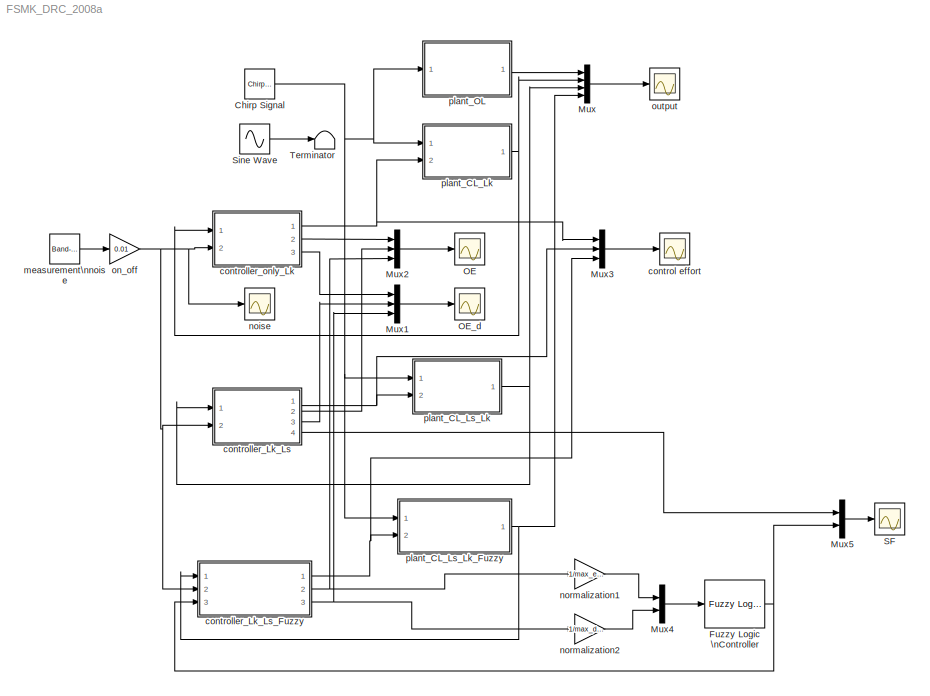
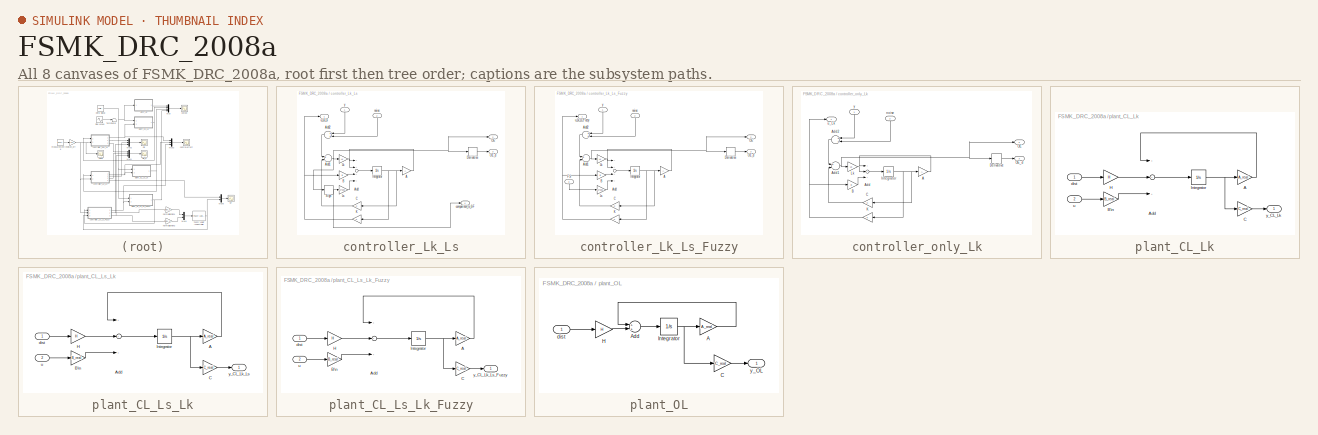
[diagram: thumbnail index - all 8 canvases of the model, root first then tree order]
MODEL FSMK_DRC_2008a
KIND model
BLOCK [Reference] Chirp Signal  REF=simulink/Sources/Chirp Signal
  Ports = [0, 1]
  SourceBlock = simulink/Sources/Chirp Signal
  SourceType = chirp
  T = 20
  VectorParams1D = on
  f1 = 0.1
  f2 = 100
BLOCK [Reference] Fuzzy Logic \nController  REF=fuzblock/Fuzzy Logic \nController  (lib defined in mdl_858b3b3e7478)
  Ports = [1, 1]
  SourceBlock = fuzblock/Fuzzy Logic \nController
  SourceType = FIS
  fis = 'FSMO.fis'
BLOCK [Mux] Mux
  DisplayOption = bar
  Ports = [4, 1]
BLOCK [Mux] Mux1
  DisplayOption = bar
  Inputs = 3
  Ports = [3, 1]
BLOCK [Mux] Mux2
  DisplayOption = bar
  Inputs = 3
  Ports = [3, 1]
BLOCK [Mux] Mux3
  DisplayOption = bar
  Inputs = 3
  Ports = [3, 1]
BLOCK [Mux] Mux4
  DisplayOption = bar
  Inputs = 2
  Ports = [2, 1]
BLOCK [Mux] Mux5
  DisplayOption = bar
  Inputs = 2
  Ports = [2, 1]
BLOCK [Scope] OE
  Floating = off
  LimitDataPoints = off
  NumInputPorts = 1
  Ports = [1]
  SaveName = ScopeData1
  YMax = 0.01
  YMin = -0.01
BLOCK [Scope] OE_d
  Floating = off
  LimitDataPoints = off
  NumInputPorts = 1
  Ports = [1]
  SaveName = ScopeData3
BLOCK [Scope] SF
  Floating = off
  LimitDataPoints = off
  NumInputPorts = 1
  Ports = [1]
  SaveName = ScopeData5
  YMax = 1
  YMin = -1
BLOCK [Sin] Sine Wave
  Frequency = 13.8*2*pi
  Ports = [0, 1]
  SampleTime = 0
BLOCK [Terminator] Terminator
BLOCK [Scope] control effort
  Floating = off
  LimitDataPoints = off
  NumInputPorts = 1
  Ports = [1]
  SaveName = ScopeData4
  YMax = 0.15
  YMin = -0.15
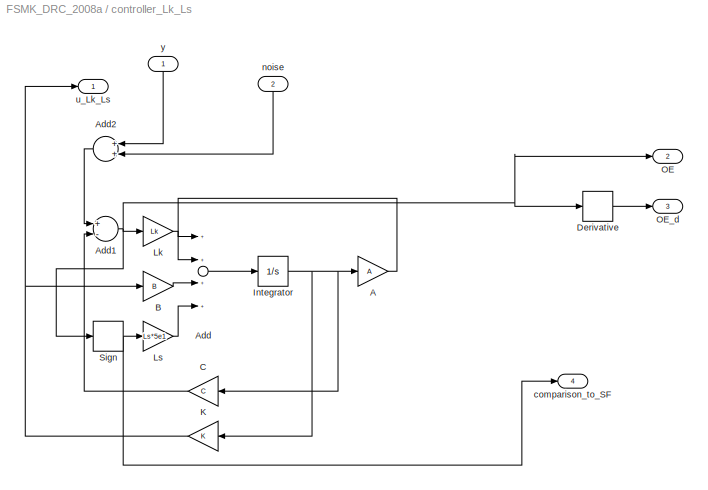
BLOCK [SubSystem] controller_Lk_Ls
  FunctionWithSeparateData = off
  MaskHideContents = off
  MinAlgLoopOccurrences = off
  Opaque = off
  Ports = [2, 4]
  PropExecContextOutsideSubsystem = off
  RTWSystemCode = Auto
BLOCK [Gain] controller_Lk_Ls/A
  Gain = A
  Multiplication = Matrix(K*u)
  OutDataTypeMode = Inherit via internal rule
  OutDataTypeStr = Inherit: Inherit via internal rule
  ParamDataTypeStr = Inherit: Inherit via internal rule
  ParameterDataTypeMode = Inherit via internal rule
  SaturateOnIntegerOverflow = off
BLOCK [Sum] controller_Lk_Ls/Add
  InputSameDT = off
  Inputs = ++++
  OutDataTypeMode = Inherit via internal rule
  OutDataTypeStr = Inherit: Inherit via internal rule
  Ports = [4, 1]
  SaturateOnIntegerOverflow = off
BLOCK [Sum] controller_Lk_Ls/Add1
  InputSameDT = off
  Inputs = +-
  OutDataTypeMode = Inherit via internal rule
  OutDataTypeStr = Inherit: Inherit via internal rule
  Ports = [2, 1]
  SaturateOnIntegerOverflow = off
BLOCK [Sum] controller_Lk_Ls/Add2
  InputSameDT = off
  OutDataTypeMode = Inherit via internal rule
  OutDataTypeStr = Inherit: Inherit via internal rule
  Ports = [2, 1]
  SaturateOnIntegerOverflow = off
BLOCK [Gain] controller_Lk_Ls/B
  Gain = B
  Multiplication = Matrix(K*u)
  OutDataTypeMode = Inherit via internal rule
  OutDataTypeStr = Inherit: Inherit via internal rule
  ParamDataTypeStr = Inherit: Inherit via internal rule
  ParameterDataTypeMode = Inherit via internal rule
  SaturateOnIntegerOverflow = off
BLOCK [Gain] controller_Lk_Ls/C
  Gain = C
  Multiplication = Matrix(K*u)
  OutDataTypeMode = Inherit via internal rule
  OutDataTypeStr = Inherit: Inherit via internal rule
  ParamDataTypeStr = Inherit: Inherit via internal rule
  ParameterDataTypeMode = Inherit via internal rule
  SaturateOnIntegerOverflow = off
BLOCK [Derivative] controller_Lk_Ls/Derivative
BLOCK [Integrator] controller_Lk_Ls/Integrator
  Ports = [1, 1]
BLOCK [Gain] controller_Lk_Ls/K
  Gain = K
  Multiplication = Matrix(K*u)
  OutDataTypeMode = Inherit via internal rule
  OutDataTypeStr = Inherit: Inherit via internal rule
  ParamDataTypeStr = Inherit: Inherit via internal rule
  ParameterDataTypeMode = Inherit via internal rule
  SaturateOnIntegerOverflow = off
BLOCK [Gain] controller_Lk_Ls/Lk
  Gain = Lk
  Multiplication = Matrix(K*u)
  OutDataTypeMode = Inherit via internal rule
  OutDataTypeStr = Inherit: Inherit via internal rule
  ParamDataTypeStr = Inherit: Inherit via internal rule
  ParameterDataTypeMode = Inherit via internal rule
  SaturateOnIntegerOverflow = off
BLOCK [Gain] controller_Lk_Ls/Ls
  Gain = Ls*5e1
  Multiplication = Matrix(K*u)
  OutDataTypeMode = Inherit via internal rule
  OutDataTypeStr = Inherit: Inherit via internal rule
  ParamDataTypeStr = Inherit: Inherit via internal rule
  ParameterDataTypeMode = Inherit via internal rule
  SaturateOnIntegerOverflow = off
BLOCK [Outport] controller_Lk_Ls/OE
  IconDisplay = Port number
  Port = 2
BLOCK [Outport] controller_Lk_Ls/OE_d
  IconDisplay = Port number
  Port = 3
BLOCK [Signum] controller_Lk_Ls/Sign
BLOCK [Outport] controller_Lk_Ls/comparison_to_SF
  IconDisplay = Port number
  Port = 4
BLOCK [Inport] controller_Lk_Ls/noise
  IconDisplay = Port number
  Port = 2
BLOCK [Outport] controller_Lk_Ls/u_Lk_Ls
  IconDisplay = Port number
BLOCK [Inport] controller_Lk_Ls/y
  IconDisplay = Port number
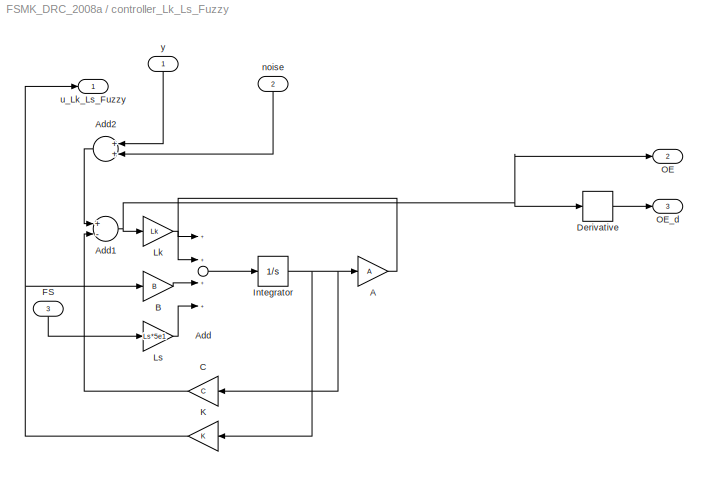
BLOCK [SubSystem] controller_Lk_Ls_Fuzzy
  FunctionWithSeparateData = off
  MaskHideContents = off
  MinAlgLoopOccurrences = off
  Opaque = off
  Ports = [3, 3]
  PropExecContextOutsideSubsystem = off
  RTWSystemCode = Auto
BLOCK [Gain] controller_Lk_Ls_Fuzzy/A
  Gain = A
  Multiplication = Matrix(K*u)
  OutDataTypeMode = Inherit via internal rule
  OutDataTypeStr = Inherit: Inherit via internal rule
  ParamDataTypeStr = Inherit: Inherit via internal rule
  ParameterDataTypeMode = Inherit via internal rule
  SaturateOnIntegerOverflow = off
BLOCK [Sum] controller_Lk_Ls_Fuzzy/Add
  InputSameDT = off
  Inputs = ++++
  OutDataTypeMode = Inherit via internal rule
  OutDataTypeStr = Inherit: Inherit via internal rule
  Ports = [4, 1]
  SaturateOnIntegerOverflow = off
BLOCK [Sum] controller_Lk_Ls_Fuzzy/Add1
  InputSameDT = off
  Inputs = +-
  OutDataTypeMode = Inherit via internal rule
  OutDataTypeStr = Inherit: Inherit via internal rule
  Ports = [2, 1]
  SaturateOnIntegerOverflow = off
BLOCK [Sum] controller_Lk_Ls_Fuzzy/Add2
  InputSameDT = off
  OutDataTypeMode = Inherit via internal rule
  OutDataTypeStr = Inherit: Inherit via internal rule
  Ports = [2, 1]
  SaturateOnIntegerOverflow = off
BLOCK [Gain] controller_Lk_Ls_Fuzzy/B
  Gain = B
  Multiplication = Matrix(K*u)
  OutDataTypeMode = Inherit via internal rule
  OutDataTypeStr = Inherit: Inherit via internal rule
  ParamDataTypeStr = Inherit: Inherit via internal rule
  ParameterDataTypeMode = Inherit via internal rule
  SaturateOnIntegerOverflow = off
BLOCK [Gain] controller_Lk_Ls_Fuzzy/C
  Gain = C
  Multiplication = Matrix(K*u)
  OutDataTypeMode = Inherit via internal rule
  OutDataTypeStr = Inherit: Inherit via internal rule
  ParamDataTypeStr = Inherit: Inherit via internal rule
  ParameterDataTypeMode = Inherit via internal rule
  SaturateOnIntegerOverflow = off
BLOCK [Derivative] controller_Lk_Ls_Fuzzy/Derivative
BLOCK [Inport] controller_Lk_Ls_Fuzzy/FS
  IconDisplay = Port number
  Port = 3
BLOCK [Integrator] controller_Lk_Ls_Fuzzy/Integrator
  Ports = [1, 1]
BLOCK [Gain] controller_Lk_Ls_Fuzzy/K
  Gain = K
  Multiplication = Matrix(K*u)
  OutDataTypeMode = Inherit via internal rule
  OutDataTypeStr = Inherit: Inherit via internal rule
  ParamDataTypeStr = Inherit: Inherit via internal rule
  ParameterDataTypeMode = Inherit via internal rule
  SaturateOnIntegerOverflow = off
BLOCK [Gain] controller_Lk_Ls_Fuzzy/Lk
  Gain = Lk
  Multiplication = Matrix(K*u)
  OutDataTypeMode = Inherit via internal rule
  OutDataTypeStr = Inherit: Inherit via internal rule
  ParamDataTypeStr = Inherit: Inherit via internal rule
  ParameterDataTypeMode = Inherit via internal rule
  SaturateOnIntegerOverflow = off
BLOCK [Gain] controller_Lk_Ls_Fuzzy/Ls
  Gain = Ls*5e1
  Multiplication = Matrix(K*u)
  OutDataTypeMode = Inherit via internal rule
  OutDataTypeStr = Inherit: Inherit via internal rule
  ParamDataTypeStr = Inherit: Inherit via internal rule
  ParameterDataTypeMode = Inherit via internal rule
  SaturateOnIntegerOverflow = off
BLOCK [Outport] controller_Lk_Ls_Fuzzy/OE
  IconDisplay = Port number
  Port = 2
BLOCK [Outport] controller_Lk_Ls_Fuzzy/OE_d
  IconDisplay = Port number
  Port = 3
BLOCK [Inport] controller_Lk_Ls_Fuzzy/noise
  IconDisplay = Port number
  Port = 2
BLOCK [Outport] controller_Lk_Ls_Fuzzy/u_Lk_Ls_Fuzzy
  IconDisplay = Port number
BLOCK [Inport] controller_Lk_Ls_Fuzzy/y
  IconDisplay = Port number
BLOCK [SubSystem] controller_only_Lk
  FunctionWithSeparateData = off
  MaskHideContents = off
  MinAlgLoopOccurrences = off
  Opaque = off
  Ports = [2, 3]
  PropExecContextOutsideSubsystem = off
  RTWSystemCode = Auto
BLOCK [Gain] controller_only_Lk/A
  Gain = A
  Multiplication = Matrix(K*u)
  OutDataTypeMode = Inherit via internal rule
  OutDataTypeStr = Inherit: Inherit via internal rule
  ParamDataTypeStr = Inherit: Inherit via internal rule
  ParameterDataTypeMode = Inherit via internal rule
  SaturateOnIntegerOverflow = off
BLOCK [Sum] controller_only_Lk/Add
  InputSameDT = off
  Inputs = +++
  OutDataTypeMode = Inherit via internal rule
  OutDataTypeStr = Inherit: Inherit via internal rule
  Ports = [3, 1]
  SaturateOnIntegerOverflow = off
BLOCK [Sum] controller_only_Lk/Add1
  InputSameDT = off
  Inputs = +-
  OutDataTypeMode = Inherit via internal rule
  OutDataTypeStr = Inherit: Inherit via internal rule
  Ports = [2, 1]
  SaturateOnIntegerOverflow = off
BLOCK [Sum] controller_only_Lk/Add2
  InputSameDT = off
  OutDataTypeMode = Inherit via internal rule
  OutDataTypeStr = Inherit: Inherit via internal rule
  Ports = [2, 1]
  SaturateOnIntegerOverflow = off
BLOCK [Gain] controller_only_Lk/B
  Gain = B
  Multiplication = Matrix(K*u)
  OutDataTypeMode = Inherit via internal rule
  OutDataTypeStr = Inherit: Inherit via internal rule
  ParamDataTypeStr = Inherit: Inherit via internal rule
  ParameterDataTypeMode = Inherit via internal rule
  SaturateOnIntegerOverflow = off
BLOCK [Gain] controller_only_Lk/C
  Gain = C
  Multiplication = Matrix(K*u)
  OutDataTypeMode = Inherit via internal rule
  OutDataTypeStr = Inherit: Inherit via internal rule
  ParamDataTypeStr = Inherit: Inherit via internal rule
  ParameterDataTypeMode = Inherit via internal rule
  SaturateOnIntegerOverflow = off
BLOCK [Derivative] controller_only_Lk/Derivative
BLOCK [Integrator] controller_only_Lk/Integrator
  Ports = [1, 1]
BLOCK [Gain] controller_only_Lk/K
  Gain = K
  Multiplication = Matrix(K*u)
  OutDataTypeMode = Inherit via internal rule
  OutDataTypeStr = Inherit: Inherit via internal rule
  ParamDataTypeStr = Inherit: Inherit via internal rule
  ParameterDataTypeMode = Inherit via internal rule
  SaturateOnIntegerOverflow = off
BLOCK [Gain] controller_only_Lk/Lk
  Gain = Lk
  Multiplication = Matrix(K*u)
  OutDataTypeMode = Inherit via internal rule
  OutDataTypeStr = Inherit: Inherit via internal rule
  ParamDataTypeStr = Inherit: Inherit via internal rule
  ParameterDataTypeMode = Inherit via internal rule
  SaturateOnIntegerOverflow = off
BLOCK [Outport] controller_only_Lk/OE
  IconDisplay = Port number
  Port = 2
BLOCK [Outport] controller_only_Lk/OE_d
  IconDisplay = Port number
  Port = 3
BLOCK [Inport] controller_only_Lk/noise
  IconDisplay = Port number
  Port = 2
BLOCK [Outport] controller_only_Lk/u_Lk
  IconDisplay = Port number
BLOCK [Inport] controller_only_Lk/y
  IconDisplay = Port number
BLOCK [Reference] measurement\nnoise  REF=simulink/Sources/Band-Limited\nWhite Noise
  Cov = [0.00000000001]
  Ports = [0, 1]
  SourceBlock = simulink/Sources/Band-Limited\nWhite Noise
  SourceType = Band-Limited White Noise.
  Ts = dt
  VectorParams1D = on
  seed = [23341]
BLOCK [Scope] noise
  Floating = off
  LimitDataPoints = off
  NumInputPorts = 1
  Ports = [1]
  SaveName = ScopeData2
BLOCK [Gain] normalization1
  Gain = 1/max_error
  OutDataTypeMode = Inherit via internal rule
  OutDataTypeStr = Inherit: Inherit via internal rule
  ParamDataTypeStr = Inherit: Inherit via internal rule
  ParameterDataTypeMode = Inherit via internal rule
  SaturateOnIntegerOverflow = off
BLOCK [Gain] normalization2
  Gain = 1/max_derror
  OutDataTypeMode = Inherit via internal rule
  OutDataTypeStr = Inherit: Inherit via internal rule
  ParamDataTypeStr = Inherit: Inherit via internal rule
  ParameterDataTypeMode = Inherit via internal rule
  SaturateOnIntegerOverflow = off
BLOCK [Gain] on_off
  Gain = 0.01
  OutDataTypeMode = Inherit via internal rule
  OutDataTypeStr = Inherit: Inherit via internal rule
  ParamDataTypeStr = Inherit: Inherit via internal rule
  ParameterDataTypeMode = Inherit via internal rule
  SaturateOnIntegerOverflow = off
BLOCK [Scope] output
  Floating = off
  LimitDataPoints = off
  NumInputPorts = 1
  Ports = [1]
BLOCK [SubSystem] plant_CL_Lk
  FunctionWithSeparateData = off
  MaskHideContents = off
  MinAlgLoopOccurrences = off
  Opaque = off
  Ports = [2, 1]
  PropExecContextOutsideSubsystem = off
  RTWSystemCode = Auto
BLOCK [Gain] plant_CL_Lk/A
  Gain = A_real
  Multiplication = Matrix(K*u)
  OutDataTypeMode = Inherit via internal rule
  OutDataTypeStr = Inherit: Inherit via internal rule
  ParamDataTypeStr = Inherit: Inherit via internal rule
  ParameterDataTypeMode = Inherit via internal rule
  SaturateOnIntegerOverflow = off
BLOCK [Sum] plant_CL_Lk/Add
  InputSameDT = off
  Inputs = +++
  OutDataTypeMode = Inherit via internal rule
  OutDataTypeStr = Inherit: Inherit via internal rule
  Ports = [3, 1]
  SaturateOnIntegerOverflow = off
BLOCK [Gain] plant_CL_Lk/B\n
  Gain = B_real
  Multiplication = Matrix(K*u)
  OutDataTypeMode = Inherit via internal rule
  OutDataTypeStr = Inherit: Inherit via internal rule
  ParamDataTypeStr = Inherit: Inherit via internal rule
  ParameterDataTypeMode = Inherit via internal rule
  SaturateOnIntegerOverflow = off
BLOCK [Gain] plant_CL_Lk/C
  Gain = C_real
  Multiplication = Matrix(K*u)
  OutDataTypeMode = Inherit via internal rule
  OutDataTypeStr = Inherit: Inherit via internal rule
  ParamDataTypeStr = Inherit: Inherit via internal rule
  ParameterDataTypeMode = Inherit via internal rule
  SaturateOnIntegerOverflow = off
BLOCK [Gain] plant_CL_Lk/H
  Gain = H
  Multiplication = Matrix(K*u)
  OutDataTypeMode = Inherit via internal rule
  OutDataTypeStr = Inherit: Inherit via internal rule
  ParamDataTypeStr = Inherit: Inherit via internal rule
  ParameterDataTypeMode = Inherit via internal rule
  SaturateOnIntegerOverflow = off
BLOCK [Integrator] plant_CL_Lk/Integrator
  Ports = [1, 1]
BLOCK [Inport] plant_CL_Lk/dist
  IconDisplay = Port number
BLOCK [Inport] plant_CL_Lk/u
  IconDisplay = Port number
  Port = 2
BLOCK [Outport] plant_CL_Lk/y_CL_Lk
  IconDisplay = Port number
BLOCK [SubSystem] plant_CL_Ls_Lk
  FunctionWithSeparateData = off
  MaskHideContents = off
  MinAlgLoopOccurrences = off
  Opaque = off
  Ports = [2, 1]
  PropExecContextOutsideSubsystem = off
  RTWSystemCode = Auto
BLOCK [Gain] plant_CL_Ls_Lk/A
  Gain = A_real
  Multiplication = Matrix(K*u)
  OutDataTypeMode = Inherit via internal rule
  OutDataTypeStr = Inherit: Inherit via internal rule
  ParamDataTypeStr = Inherit: Inherit via internal rule
  ParameterDataTypeMode = Inherit via internal rule
  SaturateOnIntegerOverflow = off
BLOCK [Sum] plant_CL_Ls_Lk/Add
  InputSameDT = off
  Inputs = +++
  OutDataTypeMode = Inherit via internal rule
  OutDataTypeStr = Inherit: Inherit via internal rule
  Ports = [3, 1]
  SaturateOnIntegerOverflow = off
BLOCK [Gain] plant_CL_Ls_Lk/B\n
  Gain = B_real
  Multiplication = Matrix(K*u)
  OutDataTypeMode = Inherit via internal rule
  OutDataTypeStr = Inherit: Inherit via internal rule
  ParamDataTypeStr = Inherit: Inherit via internal rule
  ParameterDataTypeMode = Inherit via internal rule
  SaturateOnIntegerOverflow = off
BLOCK [Gain] plant_CL_Ls_Lk/C
  Gain = C_real
  Multiplication = Matrix(K*u)
  OutDataTypeMode = Inherit via internal rule
  OutDataTypeStr = Inherit: Inherit via internal rule
  ParamDataTypeStr = Inherit: Inherit via internal rule
  ParameterDataTypeMode = Inherit via internal rule
  SaturateOnIntegerOverflow = off
BLOCK [Gain] plant_CL_Ls_Lk/H
  Gain = H
  Multiplication = Matrix(K*u)
  OutDataTypeMode = Inherit via internal rule
  OutDataTypeStr = Inherit: Inherit via internal rule
  ParamDataTypeStr = Inherit: Inherit via internal rule
  ParameterDataTypeMode = Inherit via internal rule
  SaturateOnIntegerOverflow = off
BLOCK [Integrator] plant_CL_Ls_Lk/Integrator
  Ports = [1, 1]
BLOCK [Inport] plant_CL_Ls_Lk/dist
  IconDisplay = Port number
BLOCK [Inport] plant_CL_Ls_Lk/u
  IconDisplay = Port number
  Port = 2
BLOCK [Outport] plant_CL_Ls_Lk/y_CL_Lk_Ls
  IconDisplay = Port number
BLOCK [SubSystem] plant_CL_Ls_Lk_Fuzzy
  FunctionWithSeparateData = off
  MaskHideContents = off
  MinAlgLoopOccurrences = off
  Opaque = off
  Ports = [2, 1]
  PropExecContextOutsideSubsystem = off
  RTWSystemCode = Auto
BLOCK [Gain] plant_CL_Ls_Lk_Fuzzy/A
  Gain = A_real
  Multiplication = Matrix(K*u)
  OutDataTypeMode = Inherit via internal rule
  OutDataTypeStr = Inherit: Inherit via internal rule
  ParamDataTypeStr = Inherit: Inherit via internal rule
  ParameterDataTypeMode = Inherit via internal rule
  SaturateOnIntegerOverflow = off
BLOCK [Sum] plant_CL_Ls_Lk_Fuzzy/Add
  InputSameDT = off
  Inputs = +++
  OutDataTypeMode = Inherit via internal rule
  OutDataTypeStr = Inherit: Inherit via internal rule
  Ports = [3, 1]
  SaturateOnIntegerOverflow = off
BLOCK [Gain] plant_CL_Ls_Lk_Fuzzy/B\n
  Gain = B_real
  Multiplication = Matrix(K*u)
  OutDataTypeMode = Inherit via internal rule
  OutDataTypeStr = Inherit: Inherit via internal rule
  ParamDataTypeStr = Inherit: Inherit via internal rule
  ParameterDataTypeMode = Inherit via internal rule
  SaturateOnIntegerOverflow = off
BLOCK [Gain] plant_CL_Ls_Lk_Fuzzy/C
  Gain = C_real
  Multiplication = Matrix(K*u)
  OutDataTypeMode = Inherit via internal rule
  OutDataTypeStr = Inherit: Inherit via internal rule
  ParamDataTypeStr = Inherit: Inherit via internal rule
  ParameterDataTypeMode = Inherit via internal rule
  SaturateOnIntegerOverflow = off
BLOCK [Gain] plant_CL_Ls_Lk_Fuzzy/H
  Gain = H
  Multiplication = Matrix(K*u)
  OutDataTypeMode = Inherit via internal rule
  OutDataTypeStr = Inherit: Inherit via internal rule
  ParamDataTypeStr = Inherit: Inherit via internal rule
  ParameterDataTypeMode = Inherit via internal rule
  SaturateOnIntegerOverflow = off
BLOCK [Integrator] plant_CL_Ls_Lk_Fuzzy/Integrator
  Ports = [1, 1]
BLOCK [Inport] plant_CL_Ls_Lk_Fuzzy/dist
  IconDisplay = Port number
BLOCK [Inport] plant_CL_Ls_Lk_Fuzzy/u
  IconDisplay = Port number
  Port = 2
BLOCK [Outport] plant_CL_Ls_Lk_Fuzzy/y_CL_Lk_Ls_Fuzzy
  IconDisplay = Port number
BLOCK [SubSystem] plant_OL
  FunctionWithSeparateData = off
  MaskHideContents = off
  MinAlgLoopOccurrences = off
  Opaque = off
  Ports = [1, 1]
  PropExecContextOutsideSubsystem = off
  RTWSystemCode = Auto
BLOCK [Gain] plant_OL/A
  Gain = A_real
  Multiplication = Matrix(K*u)
  OutDataTypeMode = Inherit via internal rule
  OutDataTypeStr = Inherit: Inherit via internal rule
  ParamDataTypeStr = Inherit: Inherit via internal rule
  ParameterDataTypeMode = Inherit via internal rule
  SaturateOnIntegerOverflow = off
BLOCK [Sum] plant_OL/Add
  InputSameDT = off
  OutDataTypeMode = Inherit via internal rule
  OutDataTypeStr = Inherit: Inherit via internal rule
  Ports = [2, 1]
  SaturateOnIntegerOverflow = off
BLOCK [Gain] plant_OL/C
  Gain = C_real
  Multiplication = Matrix(K*u)
  OutDataTypeMode = Inherit via internal rule
  OutDataTypeStr = Inherit: Inherit via internal rule
  ParamDataTypeStr = Inherit: Inherit via internal rule
  ParameterDataTypeMode = Inherit via internal rule
  SaturateOnIntegerOverflow = off
BLOCK [Gain] plant_OL/H
  Gain = H
  Multiplication = Matrix(K*u)
  OutDataTypeMode = Inherit via internal rule
  OutDataTypeStr = Inherit: Inherit via internal rule
  ParamDataTypeStr = Inherit: Inherit via internal rule
  ParameterDataTypeMode = Inherit via internal rule
  SaturateOnIntegerOverflow = off
BLOCK [Integrator] plant_OL/Integrator
  Ports = [1, 1]
BLOCK [Inport] plant_OL/dist
  IconDisplay = Port number
BLOCK [Outport] plant_OL/y_OL
  IconDisplay = Port number
NET Chirp Signal:1 -> plant_CL_Lk:1, plant_CL_Ls_Lk:1, plant_CL_Ls_Lk_Fuzzy:1, plant_OL:1
NET Fuzzy Logic \nController:1 -> Mux5:2, controller_Lk_Ls_Fuzzy:3
LINE Mux1:1 -> OE_d:1
LINE Mux2:1 -> OE:1
LINE Mux3:1 -> control effort:1
LINE Mux4:1 -> Fuzzy Logic \nController:1
LINE Mux5:1 -> SF:1
LINE Mux:1 -> output:1
LINE Sine Wave:1 -> Terminator:1
LINE controller_Lk_Ls/A:1 -> controller_Lk_Ls/Add:1
NET controller_Lk_Ls/Add1:1 -> controller_Lk_Ls/Derivative:1, controller_Lk_Ls/Lk:1, controller_Lk_Ls/OE:1, controller_Lk_Ls/Sign:1
LINE controller_Lk_Ls/Add2:1 -> controller_Lk_Ls/Add1:1
LINE controller_Lk_Ls/Add:1 -> controller_Lk_Ls/Integrator:1
LINE controller_Lk_Ls/B:1 -> controller_Lk_Ls/Add:3
LINE controller_Lk_Ls/C:1 -> controller_Lk_Ls/Add1:2
LINE controller_Lk_Ls/Derivative:1 -> controller_Lk_Ls/OE_d:1
NET controller_Lk_Ls/Integrator:1 -> controller_Lk_Ls/A:1, controller_Lk_Ls/C:1, controller_Lk_Ls/K:1
NET controller_Lk_Ls/K:1 -> controller_Lk_Ls/B:1, controller_Lk_Ls/u_Lk_Ls:1
LINE controller_Lk_Ls/Lk:1 -> controller_Lk_Ls/Add:2
LINE controller_Lk_Ls/Ls:1 -> controller_Lk_Ls/Add:4
NET controller_Lk_Ls/Sign:1 -> controller_Lk_Ls/Ls:1, controller_Lk_Ls/comparison_to_SF:1
LINE controller_Lk_Ls/noise:1 -> controller_Lk_Ls/Add2:2
LINE controller_Lk_Ls/y:1 -> controller_Lk_Ls/Add2:1
NET controller_Lk_Ls:1 -> Mux3:2, plant_CL_Ls_Lk:2
LINE controller_Lk_Ls:2 -> Mux2:2
LINE controller_Lk_Ls:3 -> Mux1:2
LINE controller_Lk_Ls:4 -> Mux5:1
LINE controller_Lk_Ls_Fuzzy/A:1 -> controller_Lk_Ls_Fuzzy/Add:1
NET controller_Lk_Ls_Fuzzy/Add1:1 -> controller_Lk_Ls_Fuzzy/Derivative:1, controller_Lk_Ls_Fuzzy/Lk:1, controller_Lk_Ls_Fuzzy/OE:1
LINE controller_Lk_Ls_Fuzzy/Add2:1 -> controller_Lk_Ls_Fuzzy/Add1:1
LINE controller_Lk_Ls_Fuzzy/Add:1 -> controller_Lk_Ls_Fuzzy/Integrator:1
LINE controller_Lk_Ls_Fuzzy/B:1 -> controller_Lk_Ls_Fuzzy/Add:3
LINE controller_Lk_Ls_Fuzzy/C:1 -> controller_Lk_Ls_Fuzzy/Add1:2
LINE controller_Lk_Ls_Fuzzy/Derivative:1 -> controller_Lk_Ls_Fuzzy/OE_d:1
LINE controller_Lk_Ls_Fuzzy/FS:1 -> controller_Lk_Ls_Fuzzy/Ls:1
NET controller_Lk_Ls_Fuzzy/Integrator:1 -> controller_Lk_Ls_Fuzzy/A:1, controller_Lk_Ls_Fuzzy/C:1, controller_Lk_Ls_Fuzzy/K:1
NET controller_Lk_Ls_Fuzzy/K:1 -> controller_Lk_Ls_Fuzzy/B:1, controller_Lk_Ls_Fuzzy/u_Lk_Ls_Fuzzy:1
LINE controller_Lk_Ls_Fuzzy/Lk:1 -> controller_Lk_Ls_Fuzzy/Add:2
LINE controller_Lk_Ls_Fuzzy/Ls:1 -> controller_Lk_Ls_Fuzzy/Add:4
LINE controller_Lk_Ls_Fuzzy/noise:1 -> controller_Lk_Ls_Fuzzy/Add2:2
LINE controller_Lk_Ls_Fuzzy/y:1 -> controller_Lk_Ls_Fuzzy/Add2:1
NET controller_Lk_Ls_Fuzzy:1 -> Mux3:3, plant_CL_Ls_Lk_Fuzzy:2
NET controller_Lk_Ls_Fuzzy:2 -> Mux2:3, normalization1:1
NET controller_Lk_Ls_Fuzzy:3 -> Mux1:3, normalization2:1
LINE controller_only_Lk/A:1 -> controller_only_Lk/Add:1
NET controller_only_Lk/Add1:1 -> controller_only_Lk/Derivative:1, controller_only_Lk/Lk:1, controller_only_Lk/OE:1
LINE controller_only_Lk/Add2:1 -> controller_only_Lk/Add1:1
LINE controller_only_Lk/Add:1 -> controller_only_Lk/Integrator:1
LINE controller_only_Lk/B:1 -> controller_only_Lk/Add:3
LINE controller_only_Lk/C:1 -> controller_only_Lk/Add1:2
LINE controller_only_Lk/Derivative:1 -> controller_only_Lk/OE_d:1
NET controller_only_Lk/Integrator:1 -> controller_only_Lk/A:1, controller_only_Lk/C:1, controller_only_Lk/K:1
NET controller_only_Lk/K:1 -> controller_only_Lk/B:1, controller_only_Lk/u_Lk:1
LINE controller_only_Lk/Lk:1 -> controller_only_Lk/Add:2
LINE controller_only_Lk/noise:1 -> controller_only_Lk/Add2:2
LINE controller_only_Lk/y:1 -> controller_only_Lk/Add2:1
NET controller_only_Lk:1 -> Mux3:1, plant_CL_Lk:2
LINE controller_only_Lk:2 -> Mux2:1
LINE controller_only_Lk:3 -> Mux1:1
LINE measurement\nnoise:1 -> on_off:1
LINE normalization1:1 -> Mux4:1
LINE normalization2:1 -> Mux4:2
NET on_off:1 -> controller_Lk_Ls:2, controller_Lk_Ls_Fuzzy:2, controller_only_Lk:2, noise:1
LINE plant_CL_Lk/A:1 -> plant_CL_Lk/Add:1
LINE plant_CL_Lk/Add:1 -> plant_CL_Lk/Integrator:1
LINE plant_CL_Lk/B\n:1 -> plant_CL_Lk/Add:3
LINE plant_CL_Lk/C:1 -> plant_CL_Lk/y_CL_Lk:1
LINE plant_CL_Lk/H:1 -> plant_CL_Lk/Add:2
NET plant_CL_Lk/Integrator:1 -> plant_CL_Lk/A:1, plant_CL_Lk/C:1
LINE plant_CL_Lk/dist:1 -> plant_CL_Lk/H:1
LINE plant_CL_Lk/u:1 -> plant_CL_Lk/B\n:1
NET plant_CL_Lk:1 -> Mux:2, controller_only_Lk:1
LINE plant_CL_Ls_Lk/A:1 -> plant_CL_Ls_Lk/Add:1
LINE plant_CL_Ls_Lk/Add:1 -> plant_CL_Ls_Lk/Integrator:1
LINE plant_CL_Ls_Lk/B\n:1 -> plant_CL_Ls_Lk/Add:3
LINE plant_CL_Ls_Lk/C:1 -> plant_CL_Ls_Lk/y_CL_Lk_Ls:1
LINE plant_CL_Ls_Lk/H:1 -> plant_CL_Ls_Lk/Add:2
NET plant_CL_Ls_Lk/Integrator:1 -> plant_CL_Ls_Lk/A:1, plant_CL_Ls_Lk/C:1
LINE plant_CL_Ls_Lk/dist:1 -> plant_CL_Ls_Lk/H:1
LINE plant_CL_Ls_Lk/u:1 -> plant_CL_Ls_Lk/B\n:1
NET plant_CL_Ls_Lk:1 -> Mux:3, controller_Lk_Ls:1
LINE plant_CL_Ls_Lk_Fuzzy/A:1 -> plant_CL_Ls_Lk_Fuzzy/Add:1
LINE plant_CL_Ls_Lk_Fuzzy/Add:1 -> plant_CL_Ls_Lk_Fuzzy/Integrator:1
LINE plant_CL_Ls_Lk_Fuzzy/B\n:1 -> plant_CL_Ls_Lk_Fuzzy/Add:3
LINE plant_CL_Ls_Lk_Fuzzy/C:1 -> plant_CL_Ls_Lk_Fuzzy/y_CL_Lk_Ls_Fuzzy:1
LINE plant_CL_Ls_Lk_Fuzzy/H:1 -> plant_CL_Ls_Lk_Fuzzy/Add:2
NET plant_CL_Ls_Lk_Fuzzy/Integrator:1 -> plant_CL_Ls_Lk_Fuzzy/A:1, plant_CL_Ls_Lk_Fuzzy/C:1
LINE plant_CL_Ls_Lk_Fuzzy/dist:1 -> plant_CL_Ls_Lk_Fuzzy/H:1
LINE plant_CL_Ls_Lk_Fuzzy/u:1 -> plant_CL_Ls_Lk_Fuzzy/B\n:1
NET plant_CL_Ls_Lk_Fuzzy:1 -> Mux:4, controller_Lk_Ls_Fuzzy:1
LINE plant_OL/A:1 -> plant_OL/Add:1
LINE plant_OL/Add:1 -> plant_OL/Integrator:1
LINE plant_OL/C:1 -> plant_OL/y_OL:1
LINE plant_OL/H:1 -> plant_OL/Add:2
NET plant_OL/Integrator:1 -> plant_OL/A:1, plant_OL/C:1
LINE plant_OL/dist:1 -> plant_OL/H:1
LINE plant_OL:1 -> Mux:1
note: NET lines group one-source signal fan-out (src -> all destinations, sorted); 1:1 wires keep LINE
